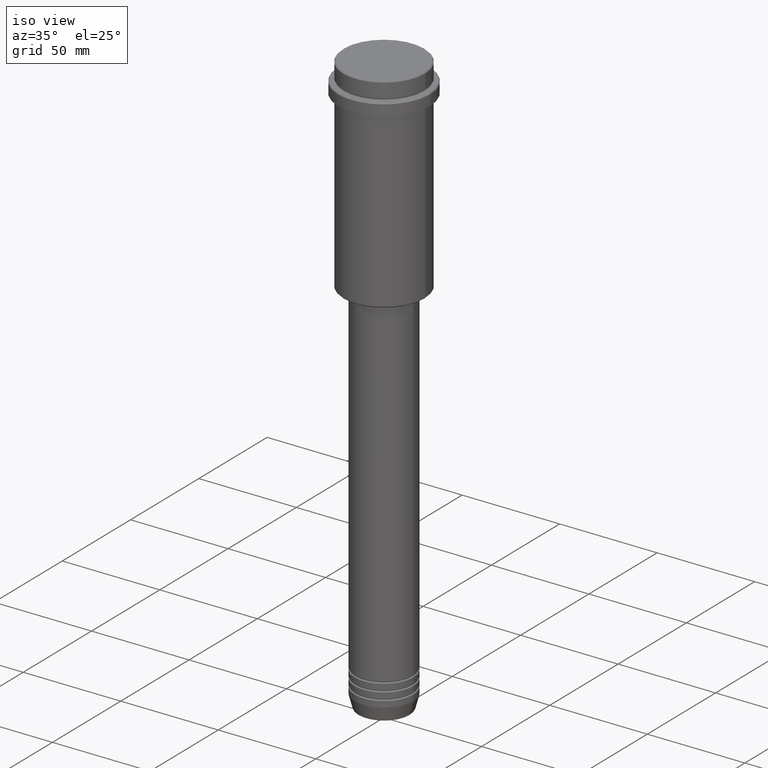
[diagram: clean part render]
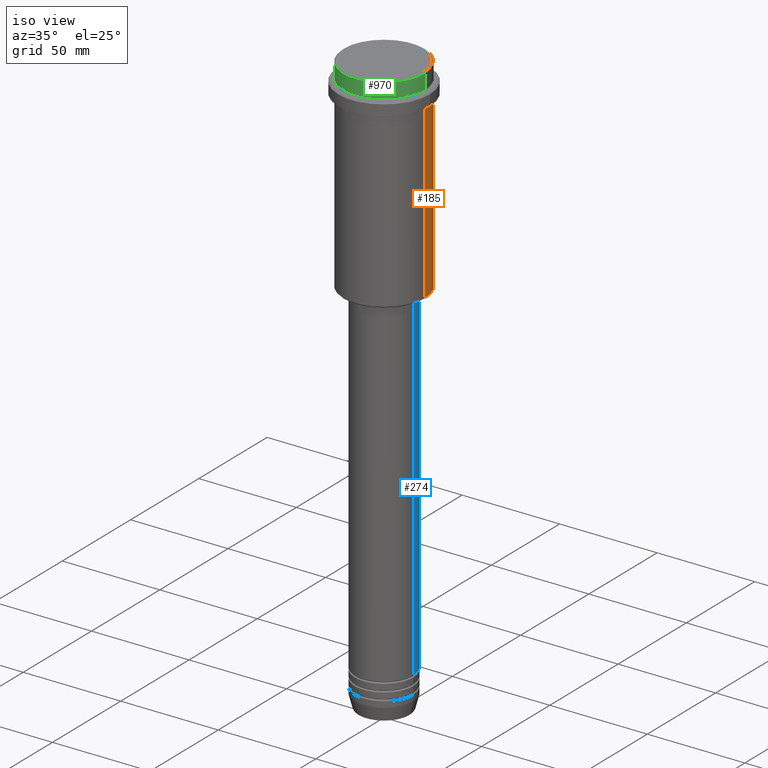
[diagram: same view with three faces highlighted in distinct colors, each labeled with its STEP entity id]
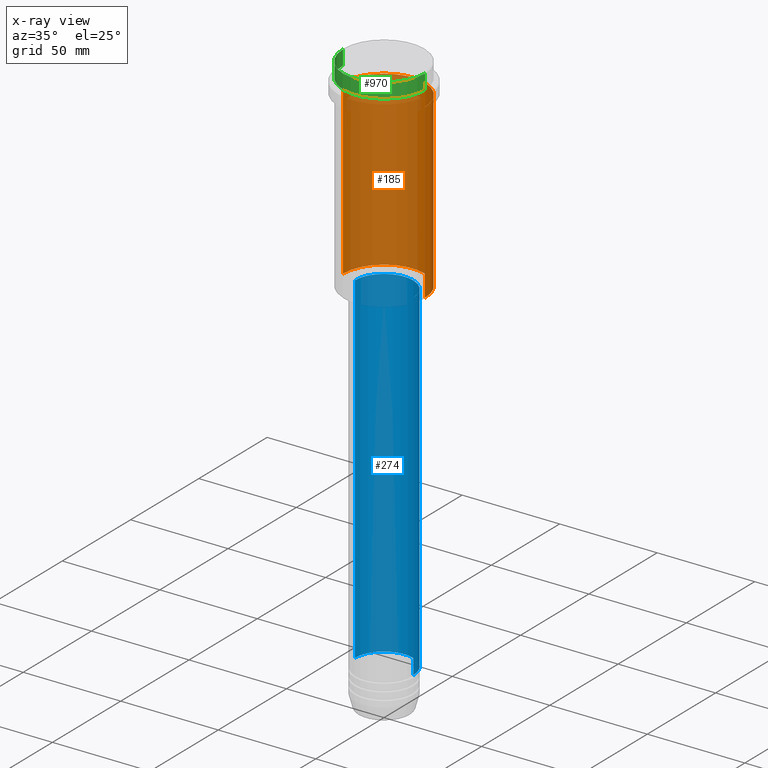
[diagram: x-ray of the same camera — body ghosted, the three highlighted faces saturated]
A machine part, iso view with three faces highlighted in distinct colors.
The next image is the same camera in x-ray (body ghosted, the three faces saturated) — at least one of them is partly hidden behind the body in this view.
Their STEP definitions:

[orange] entity #185 — the highlighted cylindrical surface (partial cylindrical patch) has radius 21 mm, axis along (-0, -0, 1).
#20 = EDGE_CURVE ( 'NONE', #1038, #1395, #751, .T. ) ;
#27 = VERTEX_POINT ( 'NONE', #1091 ) ;
#72 = EDGE_CURVE ( 'NONE', #1395, #410, #778, .T. ) ;
#94 = LINE ( 'NONE', #534, #686 ) ;
#122 = CARTESIAN_POINT ( 'NONE',  ( 0.000000000000000000, 0.000000000000000000, 0.000000000000000000 ) ) ;
#141 = EDGE_LOOP ( 'NONE', ( #1324, #554, #1190, #580 ) ) ;
#150 = DIRECTION ( 'NONE',  ( 1.000000000000000000, 0.000000000000000000, 0.000000000000000000 ) ) ;
#169 = EDGE_CURVE ( 'NONE', #27, #410, #94, .T. ) ;
#185 = ADVANCED_FACE ( 'NONE', ( #682 ), #1132, .T. ) ;
#199 = AXIS2_PLACEMENT_3D ( 'NONE', #1045, #903, #851 ) ;
#296 = VECTOR ( 'NONE', #1310, 1000.000000000000000 ) ;
#364 = CIRCLE ( 'NONE', #594, 20.99999999999999645 ) ;
#410 = VERTEX_POINT ( 'NONE', #1043 ) ;
#432 = CARTESIAN_POINT ( 'NONE',  ( 20.99999999999999645, 0.000000000000000000, -104.5000000000000284 ) ) ;
#483 = EDGE_CURVE ( 'NONE', #1038, #27, #364, .T. ) ;
#534 = CARTESIAN_POINT ( 'NONE',  ( -20.99999999999999645, 2.571758278209441267E-15, 0.000000000000000000 ) ) ;
#549 = DIRECTION ( 'NONE',  ( -0.000000000000000000, -0.000000000000000000, 1.000000000000000000 ) ) ;
#554 = ORIENTED_EDGE ( 'NONE', *, *, #169, .T. ) ;
#564 = DIRECTION ( 'NONE',  ( -0.000000000000000000, -0.000000000000000000, 1.000000000000000000 ) ) ;
#580 = ORIENTED_EDGE ( 'NONE', *, *, #20, .F. ) ;
#594 = AXIS2_PLACEMENT_3D ( 'NONE', #666, #549, #1104 ) ;
#666 = CARTESIAN_POINT ( 'NONE',  ( 0.000000000000000000, 0.000000000000000000, -104.5000000000000284 ) ) ;
#682 = FACE_OUTER_BOUND ( 'NONE', #141, .T. ) ;
#686 = VECTOR ( 'NONE', #798, 1000.000000000000000 ) ;
#751 = LINE ( 'NONE', #773, #296 ) ;
#773 = CARTESIAN_POINT ( 'NONE',  ( 20.99999999999999645, 0.000000000000000000, 0.000000000000000000 ) ) ;
#778 = CIRCLE ( 'NONE', #199, 20.99999999999999645 ) ;
#798 = DIRECTION ( 'NONE',  ( -0.000000000000000000, -0.000000000000000000, 1.000000000000000000 ) ) ;
#851 = DIRECTION ( 'NONE',  ( 1.000000000000000000, 0.000000000000000000, 0.000000000000000000 ) ) ;
#853 = CARTESIAN_POINT ( 'NONE',  ( 20.99999999999999645, 0.000000000000000000, -16.00000000000000355 ) ) ;
#903 = DIRECTION ( 'NONE',  ( -0.000000000000000000, -0.000000000000000000, 1.000000000000000000 ) ) ;
#1038 = VERTEX_POINT ( 'NONE', #432 ) ;
#1043 = CARTESIAN_POINT ( 'NONE',  ( -20.99999999999999645, 2.571758278209441267E-15, -16.00000000000000355 ) ) ;
#1045 = CARTESIAN_POINT ( 'NONE',  ( 0.000000000000000000, 0.000000000000000000, -16.00000000000000355 ) ) ;
#1091 = CARTESIAN_POINT ( 'NONE',  ( -20.99999999999999645, 2.571758278209441267E-15, -104.5000000000000284 ) ) ;
#1104 = DIRECTION ( 'NONE',  ( -1.000000000000000000, 0.000000000000000000, 0.000000000000000000 ) ) ;
#1132 = CYLINDRICAL_SURFACE ( 'NONE', #1256, 20.99999999999999645 ) ;
#1190 = ORIENTED_EDGE ( 'NONE', *, *, #72, .F. ) ;
#1256 = AXIS2_PLACEMENT_3D ( 'NONE', #122, #564, #150 ) ;
#1310 = DIRECTION ( 'NONE',  ( -0.000000000000000000, -0.000000000000000000, 1.000000000000000000 ) ) ;
#1324 = ORIENTED_EDGE ( 'NONE', *, *, #483, .T. ) ;
#1395 = VERTEX_POINT ( 'NONE', #853 ) ;

[blue] entity #274 — the highlighted cylindrical surface (edge-blend (fillet) strip) has radius 15 mm, axis along (-0, -0, 1).
#17 = ORIENTED_EDGE ( 'NONE', *, *, #1378, .T. ) ;
#58 = DIRECTION ( 'NONE',  ( -0.000000000000000000, -0.000000000000000000, 1.000000000000000000 ) ) ;
#63 = CYLINDRICAL_SURFACE ( 'NONE', #431, 15.00000000000000000 ) ;
#179 = CIRCLE ( 'NONE', #297, 15.00000000000000000 ) ;
#192 = EDGE_CURVE ( 'NONE', #687, #283, #1008, .T. ) ;
#215 = CARTESIAN_POINT ( 'NONE',  ( 0.000000000000000000, 0.000000000000000000, -280.9999999999999432 ) ) ;
#274 = ADVANCED_FACE ( 'NONE', ( #1251 ), #63, .T. ) ;
#283 = VERTEX_POINT ( 'NONE', #499 ) ;
#297 = AXIS2_PLACEMENT_3D ( 'NONE', #215, #1093, #1207 ) ;
#298 = CARTESIAN_POINT ( 'NONE',  ( -15.00000000000000000, 1.836970198721029589E-15, 0.000000000000000000 ) ) ;
#302 = EDGE_CURVE ( 'NONE', #470, #1372, #179, .T. ) ;
#431 = AXIS2_PLACEMENT_3D ( 'NONE', #1046, #58, #495 ) ;
#470 = VERTEX_POINT ( 'NONE', #1085 ) ;
#495 = DIRECTION ( 'NONE',  ( 1.000000000000000000, 0.000000000000000000, 0.000000000000000000 ) ) ;
#499 = CARTESIAN_POINT ( 'NONE',  ( -15.00000000000000000, 1.836970198721029589E-15, -105.9999999999999289 ) ) ;
#560 = EDGE_LOOP ( 'NONE', ( #678, #17, #718, #907 ) ) ;
#583 = CARTESIAN_POINT ( 'NONE',  ( 0.000000000000000000, 0.000000000000000000, -105.9999999999999289 ) ) ;
#625 = LINE ( 'NONE', #841, #1303 ) ;
#678 = ORIENTED_EDGE ( 'NONE', *, *, #302, .T. ) ;
#687 = VERTEX_POINT ( 'NONE', #695 ) ;
#695 = CARTESIAN_POINT ( 'NONE',  ( 15.00000000000000000, 0.000000000000000000, -105.9999999999999289 ) ) ;
#718 = ORIENTED_EDGE ( 'NONE', *, *, #192, .F. ) ;
#741 = DIRECTION ( 'NONE',  ( -0.000000000000000000, -0.000000000000000000, 1.000000000000000000 ) ) ;
#792 = DIRECTION ( 'NONE',  ( 1.000000000000000000, 0.000000000000000000, 0.000000000000000000 ) ) ;
#796 = EDGE_CURVE ( 'NONE', #470, #687, #625, .T. ) ;
#839 = CARTESIAN_POINT ( 'NONE',  ( -15.00000000000000000, 1.836970198721029589E-15, -280.9999999999999432 ) ) ;
#841 = CARTESIAN_POINT ( 'NONE',  ( 15.00000000000000000, 0.000000000000000000, 0.000000000000000000 ) ) ;
#907 = ORIENTED_EDGE ( 'NONE', *, *, #796, .F. ) ;
#967 = VECTOR ( 'NONE', #741, 1000.000000000000000 ) ;
#1008 = CIRCLE ( 'NONE', #1167, 15.00000000000000000 ) ;
#1046 = CARTESIAN_POINT ( 'NONE',  ( 0.000000000000000000, 0.000000000000000000, 0.000000000000000000 ) ) ;
#1085 = CARTESIAN_POINT ( 'NONE',  ( 15.00000000000000000, 0.000000000000000000, -280.9999999999999432 ) ) ;
#1093 = DIRECTION ( 'NONE',  ( -0.000000000000000000, -0.000000000000000000, 1.000000000000000000 ) ) ;
#1167 = AXIS2_PLACEMENT_3D ( 'NONE', #583, #1330, #792 ) ;
#1207 = DIRECTION ( 'NONE',  ( 1.000000000000000000, 0.000000000000000000, 0.000000000000000000 ) ) ;
#1251 = FACE_OUTER_BOUND ( 'NONE', #560, .T. ) ;
#1274 = LINE ( 'NONE', #298, #967 ) ;
#1303 = VECTOR ( 'NONE', #1398, 1000.000000000000000 ) ;
#1330 = DIRECTION ( 'NONE',  ( -0.000000000000000000, -0.000000000000000000, 1.000000000000000000 ) ) ;
#1372 = VERTEX_POINT ( 'NONE', #839 ) ;
#1378 = EDGE_CURVE ( 'NONE', #1372, #283, #1274, .T. ) ;
#1398 = DIRECTION ( 'NONE',  ( -0.000000000000000000, -0.000000000000000000, 1.000000000000000000 ) ) ;

[green] entity #970 — the highlighted cylindrical surface (partial cylindrical patch) has radius 21 mm, axis along (-0, -0, 1).
#14 = DIRECTION ( 'NONE',  ( 1.000000000000000000, 0.000000000000000000, 0.000000000000000000 ) ) ;
#52 = ORIENTED_EDGE ( 'NONE', *, *, #926, .F. ) ;
#62 = CARTESIAN_POINT ( 'NONE',  ( 20.99999999999999645, 0.000000000000000000, -0.5000000000000073275 ) ) ;
#65 = VERTEX_POINT ( 'NONE', #1015 ) ;
#161 = VECTOR ( 'NONE', #638, 1000.000000000000000 ) ;
#197 = CARTESIAN_POINT ( 'NONE',  ( 0.000000000000000000, 0.000000000000000000, -7.999999999999998224 ) ) ;
#236 = VERTEX_POINT ( 'NONE', #706 ) ;
#238 = EDGE_LOOP ( 'NONE', ( #52, #799, #305, #445 ) ) ;
#256 = AXIS2_PLACEMENT_3D ( 'NONE', #197, #644, #14 ) ;
#263 = DIRECTION ( 'NONE',  ( -0.000000000000000000, -0.000000000000000000, 1.000000000000000000 ) ) ;
#281 = DIRECTION ( 'NONE',  ( 1.000000000000000000, 0.000000000000000000, 0.000000000000000000 ) ) ;
#305 = ORIENTED_EDGE ( 'NONE', *, *, #771, .T. ) ;
#312 = CARTESIAN_POINT ( 'NONE',  ( 0.000000000000000000, 0.000000000000000000, 0.000000000000000000 ) ) ;
#445 = ORIENTED_EDGE ( 'NONE', *, *, #913, .T. ) ;
#493 = CARTESIAN_POINT ( 'NONE',  ( 0.000000000000000000, 0.000000000000000000, -0.5000000000000073275 ) ) ;
#573 = CIRCLE ( 'NONE', #1150, 20.99999999999999645 ) ;
#584 = LINE ( 'NONE', #1026, #1013 ) ;
#638 = DIRECTION ( 'NONE',  ( -0.000000000000000000, -0.000000000000000000, 1.000000000000000000 ) ) ;
#644 = DIRECTION ( 'NONE',  ( -0.000000000000000000, -0.000000000000000000, 1.000000000000000000 ) ) ;
#706 = CARTESIAN_POINT ( 'NONE',  ( -20.99999999999999645, 2.571758278209441267E-15, -0.5000000000000073275 ) ) ;
#756 = AXIS2_PLACEMENT_3D ( 'NONE', #312, #880, #761 ) ;
#761 = DIRECTION ( 'NONE',  ( 1.000000000000000000, 0.000000000000000000, 0.000000000000000000 ) ) ;
#771 = EDGE_CURVE ( 'NONE', #1222, #827, #584, .T. ) ;
#799 = ORIENTED_EDGE ( 'NONE', *, *, #1039, .T. ) ;
#827 = VERTEX_POINT ( 'NONE', #62 ) ;
#880 = DIRECTION ( 'NONE',  ( -0.000000000000000000, -0.000000000000000000, 1.000000000000000000 ) ) ;
#913 = EDGE_CURVE ( 'NONE', #827, #236, #573, .T. ) ;
#914 = CARTESIAN_POINT ( 'NONE',  ( 20.99999999999999645, 0.000000000000000000, -7.999999999999998224 ) ) ;
#926 = EDGE_CURVE ( 'NONE', #65, #236, #1183, .T. ) ;
#970 = ADVANCED_FACE ( 'NONE', ( #1216 ), #1312, .T. ) ;
#1013 = VECTOR ( 'NONE', #263, 1000.000000000000000 ) ;
#1015 = CARTESIAN_POINT ( 'NONE',  ( -20.99999999999999645, 2.571758278209441267E-15, -7.999999999999998224 ) ) ;
#1026 = CARTESIAN_POINT ( 'NONE',  ( 20.99999999999999645, 0.000000000000000000, 0.000000000000000000 ) ) ;
#1039 = EDGE_CURVE ( 'NONE', #65, #1222, #1355, .T. ) ;
#1057 = CARTESIAN_POINT ( 'NONE',  ( -20.99999999999999645, 2.571758278209441267E-15, 0.000000000000000000 ) ) ;
#1150 = AXIS2_PLACEMENT_3D ( 'NONE', #493, #1257, #281 ) ;
#1183 = LINE ( 'NONE', #1057, #161 ) ;
#1216 = FACE_OUTER_BOUND ( 'NONE', #238, .T. ) ;
#1222 = VERTEX_POINT ( 'NONE', #914 ) ;
#1257 = DIRECTION ( 'NONE',  ( 0.000000000000000000, 0.000000000000000000, -1.000000000000000000 ) ) ;
#1312 = CYLINDRICAL_SURFACE ( 'NONE', #756, 20.99999999999999645 ) ;
#1355 = CIRCLE ( 'NONE', #256, 20.99999999999999645 ) ;